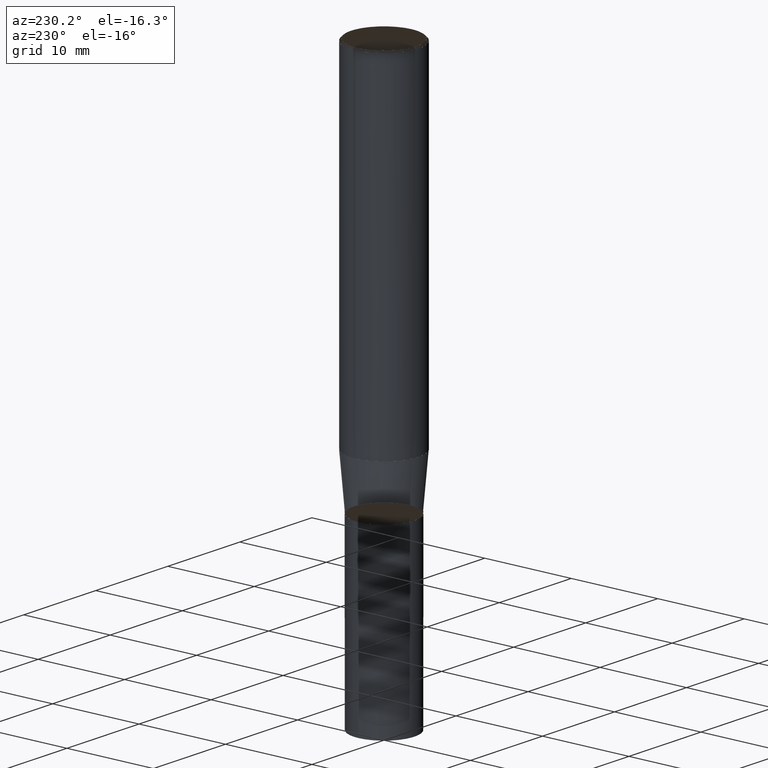
[diagram: clean part render]
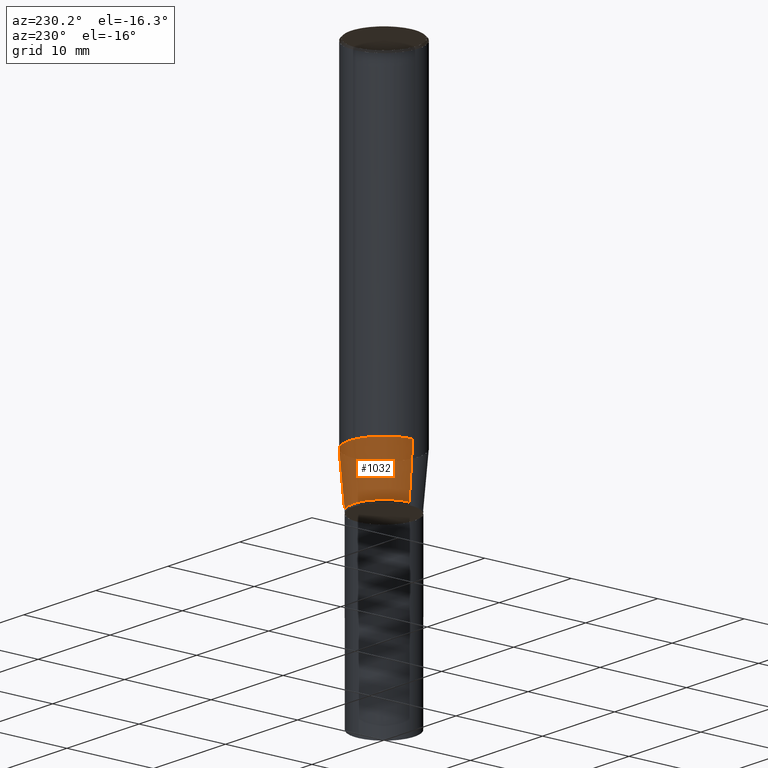
[diagram: same view with one face highlighted and labeled with its STEP entity id]
A machine part, auxiliary view. The second image highlights one B-rep face of the part: STEP entity #1032.
In plain terms, the highlighted face is a freeform B-spline surface patch.
Its self-contained STEP definition (entity closure, byte-faithful):
#830=CARTESIAN_POINT('',(3.5,0.0,-5.715026151381));
#831=CARTESIAN_POINT('',(3.5,3.5,-5.715026151381));
#832=CARTESIAN_POINT('',(0.0,3.5,-5.715026151381));
#833=CARTESIAN_POINT('',(-3.5,3.5,-5.715026151381));
#834=CARTESIAN_POINT('',(-3.5,0.0,-5.715026151381));
#835=CARTESIAN_POINT('',(4.0,0.0,0.0));
#836=CARTESIAN_POINT('',(4.0,4.0,0.0));
#837=CARTESIAN_POINT('',(0.0,4.0,0.0));
#838=CARTESIAN_POINT('',(-4.0,4.0,0.0));
#839=CARTESIAN_POINT('',(-4.0,0.0,0.0));
#1013=(
BOUNDED_SURFACE()
B_SPLINE_SURFACE(1,2,(
(#830,#831,#832,#833,#834),
(#835,#836,#837,#838,#839)
), .UNSPECIFIED.,.F.,.F.,.F.)
B_SPLINE_SURFACE_WITH_KNOTS((2,2),(3,2,3),(
0.0,1.0),(
0.0,0.5,1.0), .UNSPECIFIED.)
GEOMETRIC_REPRESENTATION_ITEM()
RATIONAL_B_SPLINE_SURFACE(((1.0,0.707106781187,1.0,0.707106781187,1.0),
(1.0,0.707106781187,1.0,0.707106781187,1.0)
))
REPRESENTATION_ITEM('')
SURFACE()
);
#1014=(
BOUNDED_CURVE()
B_SPLINE_CURVE(2,(#834,#833,#832,#831,#830),.UNSPECIFIED.,.F.,.F.)
B_SPLINE_CURVE_WITH_KNOTS((3,2,3),
(0.0,0.5,1.0),.UNSPECIFIED.)
CURVE()
GEOMETRIC_REPRESENTATION_ITEM()
RATIONAL_B_SPLINE_CURVE((1.0,0.707106781187,1.0,0.707106781187,1.0))
REPRESENTATION_ITEM('')
);
#1015=(
BOUNDED_CURVE()
B_SPLINE_CURVE(1,(#830,#835),.UNSPECIFIED.,.F.,.F.)
B_SPLINE_CURVE_WITH_KNOTS((2,2),
(0.0,1.0),.UNSPECIFIED.)
CURVE()
GEOMETRIC_REPRESENTATION_ITEM()
RATIONAL_B_SPLINE_CURVE((1.0,1.0))
REPRESENTATION_ITEM('')
);
#1016=(
BOUNDED_CURVE()
B_SPLINE_CURVE(2,(#835,#836,#837,#838,#839),.UNSPECIFIED.,.F.,.F.)
B_SPLINE_CURVE_WITH_KNOTS((3,2,3),
(0.0,0.5,1.0),.UNSPECIFIED.)
CURVE()
GEOMETRIC_REPRESENTATION_ITEM()
RATIONAL_B_SPLINE_CURVE((1.0,0.707106781187,1.0,0.707106781187,1.0))
REPRESENTATION_ITEM('')
);
#1017=(
BOUNDED_CURVE()
B_SPLINE_CURVE(1,(#839,#834),.UNSPECIFIED.,.F.,.F.)
B_SPLINE_CURVE_WITH_KNOTS((2,2),
(0.0,1.0),.UNSPECIFIED.)
CURVE()
GEOMETRIC_REPRESENTATION_ITEM()
RATIONAL_B_SPLINE_CURVE((1.0,1.0))
REPRESENTATION_ITEM('')
);
#1018=VERTEX_POINT('',#830);
#1019=VERTEX_POINT('',#834);
#1020=VERTEX_POINT('',#835);
#1021=VERTEX_POINT('',#839);
#1022=EDGE_CURVE('',#1019,#1018,#1014,.T.);
#1023=EDGE_CURVE('',#1018,#1020,#1015,.T.);
#1024=EDGE_CURVE('',#1020,#1021,#1016,.T.);
#1025=EDGE_CURVE('',#1021,#1019,#1017,.T.);
#1026=ORIENTED_EDGE('',*,*,#1022,.T.);
#1027=ORIENTED_EDGE('',*,*,#1023,.T.);
#1028=ORIENTED_EDGE('',*,*,#1024,.T.);
#1029=ORIENTED_EDGE('',*,*,#1025,.T.);
#1030=EDGE_LOOP('',(#1026,#1027,#1028,#1029));
#1031=FACE_OUTER_BOUND('',#1030,.T.);
#1032=ADVANCED_FACE('',(#1031),#1013,.T.);